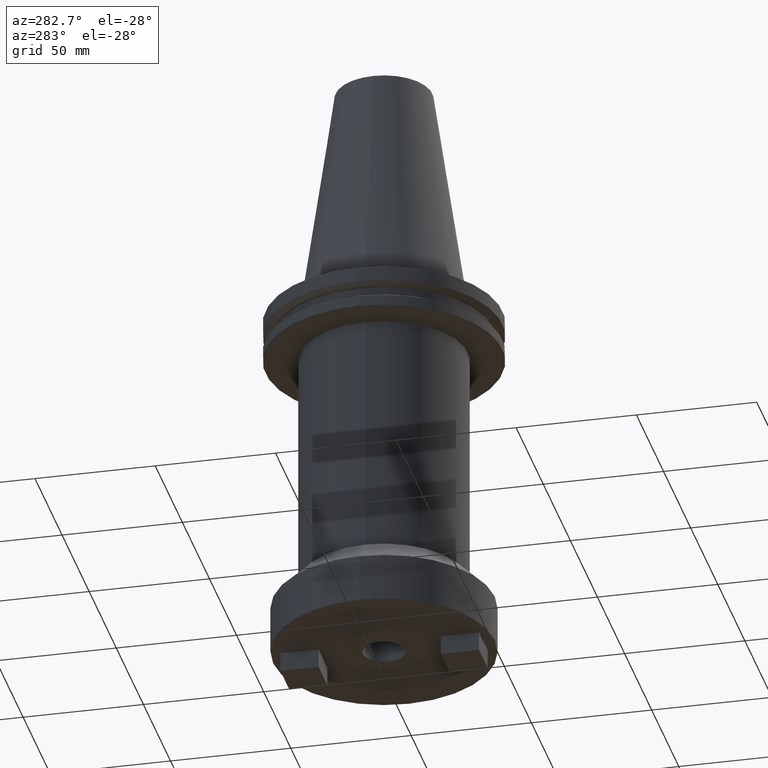
[diagram: clean part render]
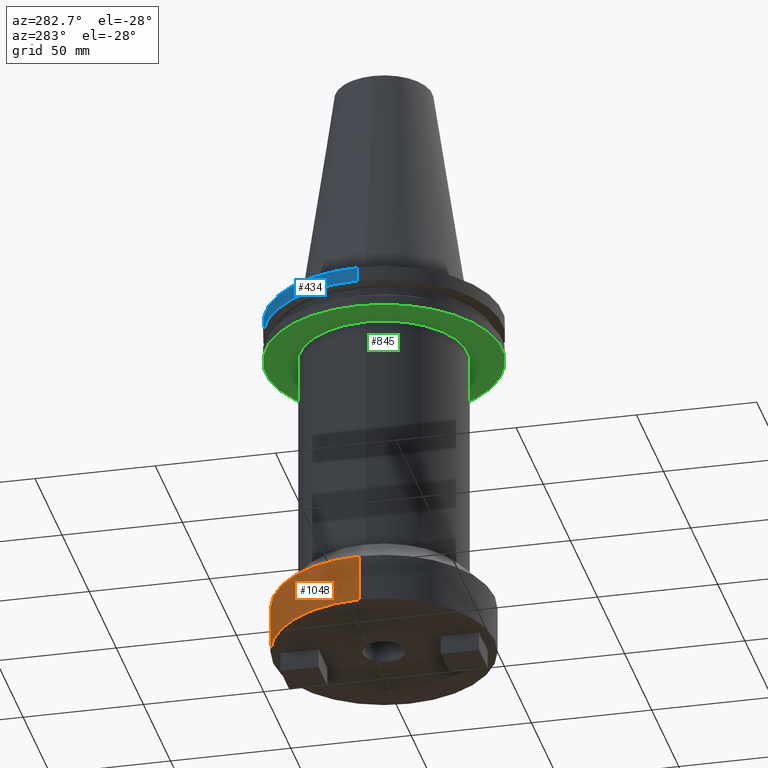
[diagram: same view with three faces highlighted in distinct colors, each labeled with its STEP entity id]
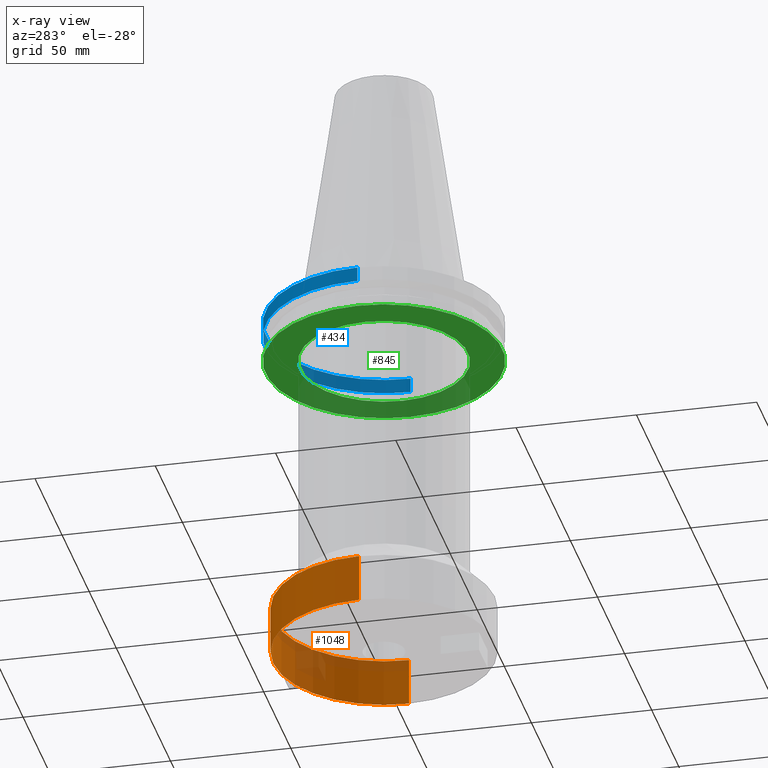
[diagram: x-ray of the same camera — body ghosted, the three highlighted faces saturated]
A machine part, auxiliary view with three faces highlighted in distinct colors.
The next image is the same camera in x-ray (body ghosted, the three faces saturated) — at least one of them is partly hidden behind the body in this view.
Their STEP definitions:

[orange] entity #1048 — the highlighted cylindrical surface (partial cylindrical patch) has radius 46.05 mm, axis along (-0, -0, 1).
#49 = DIRECTION ( 'NONE',  ( -0.000000000000000000, -0.000000000000000000, 1.000000000000000000 ) ) ;
#55 = CYLINDRICAL_SURFACE ( 'NONE', #959, 46.04999999999999716 ) ;
#103 = ORIENTED_EDGE ( 'NONE', *, *, #817, .T. ) ;
#105 = EDGE_CURVE ( 'NONE', #790, #1039, #1105, .T. ) ;
#132 = EDGE_LOOP ( 'NONE', ( #103, #465, #442, #724 ) ) ;
#163 = VERTEX_POINT ( 'NONE', #532 ) ;
#185 = DIRECTION ( 'NONE',  ( -0.000000000000000000, -0.000000000000000000, 1.000000000000000000 ) ) ;
#226 = DIRECTION ( 'NONE',  ( -0.000000000000000000, -0.000000000000000000, 1.000000000000000000 ) ) ;
#271 = VERTEX_POINT ( 'NONE', #630 ) ;
#310 = AXIS2_PLACEMENT_3D ( 'NONE', #634, #953, #614 ) ;
#317 = FACE_OUTER_BOUND ( 'NONE', #132, .T. ) ;
#335 = EDGE_CURVE ( 'NONE', #163, #271, #991, .T. ) ;
#354 = CIRCLE ( 'NONE', #500, 46.04999999999999716 ) ;
#442 = ORIENTED_EDGE ( 'NONE', *, *, #611, .F. ) ;
#465 = ORIENTED_EDGE ( 'NONE', *, *, #335, .T. ) ;
#500 = AXIS2_PLACEMENT_3D ( 'NONE', #1093, #569, #1078 ) ;
#532 = CARTESIAN_POINT ( 'NONE',  ( -46.04999999999999716, 5.639498510073560988E-15, -152.4000000000000057 ) ) ;
#562 = DIRECTION ( 'NONE',  ( 1.000000000000000000, 0.000000000000000000, 0.000000000000000000 ) ) ;
#569 = DIRECTION ( 'NONE',  ( -0.000000000000000000, -0.000000000000000000, 1.000000000000000000 ) ) ;
#588 = CIRCLE ( 'NONE', #310, 46.04999999999999716 ) ;
#611 = EDGE_CURVE ( 'NONE', #1039, #271, #588, .T. ) ;
#614 = DIRECTION ( 'NONE',  ( 1.000000000000000000, 0.000000000000000000, 0.000000000000000000 ) ) ;
#630 = CARTESIAN_POINT ( 'NONE',  ( -46.04999999999999716, 0.000000000000000000, -132.3949999999999534 ) ) ;
#634 = CARTESIAN_POINT ( 'NONE',  ( 0.000000000000000000, 0.000000000000000000, -132.3949999999999534 ) ) ;
#657 = CARTESIAN_POINT ( 'NONE',  ( 0.000000000000000000, 0.000000000000000000, 0.000000000000000000 ) ) ;
#663 = CARTESIAN_POINT ( 'NONE',  ( -46.04999999999999716, 5.639498510073560988E-15, 0.000000000000000000 ) ) ;
#667 = CARTESIAN_POINT ( 'NONE',  ( 46.04999999999999716, 5.639498510073560988E-15, -132.3949999999999534 ) ) ;
#724 = ORIENTED_EDGE ( 'NONE', *, *, #105, .F. ) ;
#790 = VERTEX_POINT ( 'NONE', #804 ) ;
#804 = CARTESIAN_POINT ( 'NONE',  ( 46.04999999999999716, 0.000000000000000000, -152.4000000000000057 ) ) ;
#817 = EDGE_CURVE ( 'NONE', #790, #163, #354, .T. ) ;
#945 = CARTESIAN_POINT ( 'NONE',  ( 46.04999999999999716, 0.000000000000000000, 0.000000000000000000 ) ) ;
#953 = DIRECTION ( 'NONE',  ( -0.000000000000000000, -0.000000000000000000, 1.000000000000000000 ) ) ;
#959 = AXIS2_PLACEMENT_3D ( 'NONE', #657, #49, #562 ) ;
#991 = LINE ( 'NONE', #663, #1102 ) ;
#1039 = VERTEX_POINT ( 'NONE', #667 ) ;
#1048 = ADVANCED_FACE ( 'NONE', ( #317 ), #55, .T. ) ;
#1078 = DIRECTION ( 'NONE',  ( 1.000000000000000000, 0.000000000000000000, 0.000000000000000000 ) ) ;
#1093 = CARTESIAN_POINT ( 'NONE',  ( 0.000000000000000000, 0.000000000000000000, -152.4000000000000057 ) ) ;
#1102 = VECTOR ( 'NONE', #226, 1000.000000000000000 ) ;
#1104 = VECTOR ( 'NONE', #185, 1000.000000000000000 ) ;
#1105 = LINE ( 'NONE', #945, #1104 ) ;

[blue] entity #434 — the highlighted cylindrical surface (partial cylindrical patch) has radius 49.215 mm, axis along (-0, -0, 1).
#15 = EDGE_CURVE ( 'NONE', #113, #747, #1108, .T. ) ;
#21 = CARTESIAN_POINT ( 'NONE',  ( 0.000000000000000000, 0.000000000000000000, -7.602389855251287187 ) ) ;
#27 = LINE ( 'NONE', #697, #1069 ) ;
#39 = CIRCLE ( 'NONE', #444, 49.21499999999999631 ) ;
#94 = CARTESIAN_POINT ( 'NONE',  ( -49.21499999999999631, 6.027099222003697826E-15, 101.5999999999999943 ) ) ;
#113 = VERTEX_POINT ( 'NONE', #337 ) ;
#189 = AXIS2_PLACEMENT_3D ( 'NONE', #507, #765, #1017 ) ;
#195 = VERTEX_POINT ( 'NONE', #476 ) ;
#209 = ORIENTED_EDGE ( 'NONE', *, *, #654, .T. ) ;
#337 = CARTESIAN_POINT ( 'NONE',  ( -49.21500000000000341, 6.027099222003699404E-15, -7.602389855251287187 ) ) ;
#408 = DIRECTION ( 'NONE',  ( 1.000000000000000000, 0.000000000000000000, 0.000000000000000000 ) ) ;
#427 = DIRECTION ( 'NONE',  ( -0.000000000000000000, -0.000000000000000000, 1.000000000000000000 ) ) ;
#433 = CYLINDRICAL_SURFACE ( 'NONE', #189, 49.21499999999999631 ) ;
#434 = ADVANCED_FACE ( 'NONE', ( #609 ), #433, .T. ) ;
#444 = AXIS2_PLACEMENT_3D ( 'NONE', #670, #427, #408 ) ;
#476 = CARTESIAN_POINT ( 'NONE',  ( 49.21500000000000341, 0.000000000000000000, -7.602389855251287187 ) ) ;
#507 = CARTESIAN_POINT ( 'NONE',  ( 0.000000000000000000, 0.000000000000000000, 101.5999999999999943 ) ) ;
#572 = AXIS2_PLACEMENT_3D ( 'NONE', #21, #803, #638 ) ;
#605 = EDGE_CURVE ( 'NONE', #195, #807, #27, .T. ) ;
#609 = FACE_OUTER_BOUND ( 'NONE', #764, .T. ) ;
#638 = DIRECTION ( 'NONE',  ( 1.000000000000000000, 0.000000000000000000, 0.000000000000000000 ) ) ;
#654 = EDGE_CURVE ( 'NONE', #195, #113, #1029, .T. ) ;
#670 = CARTESIAN_POINT ( 'NONE',  ( 0.000000000000000000, 0.000000000000000000, -1.499999999999987566 ) ) ;
#679 = DIRECTION ( 'NONE',  ( -0.000000000000000000, -0.000000000000000000, 1.000000000000000000 ) ) ;
#697 = CARTESIAN_POINT ( 'NONE',  ( 49.21499999999999631, 0.000000000000000000, 101.5999999999999943 ) ) ;
#710 = DIRECTION ( 'NONE',  ( -0.000000000000000000, -0.000000000000000000, 1.000000000000000000 ) ) ;
#727 = ORIENTED_EDGE ( 'NONE', *, *, #15, .T. ) ;
#730 = EDGE_CURVE ( 'NONE', #807, #747, #39, .T. ) ;
#747 = VERTEX_POINT ( 'NONE', #768 ) ;
#764 = EDGE_LOOP ( 'NONE', ( #209, #727, #981, #1091 ) ) ;
#765 = DIRECTION ( 'NONE',  ( -0.000000000000000000, -0.000000000000000000, 1.000000000000000000 ) ) ;
#768 = CARTESIAN_POINT ( 'NONE',  ( -49.21499999999999631, 6.027099222003697826E-15, -1.499999999999987566 ) ) ;
#803 = DIRECTION ( 'NONE',  ( -0.000000000000000000, -0.000000000000000000, 1.000000000000000000 ) ) ;
#807 = VERTEX_POINT ( 'NONE', #901 ) ;
#901 = CARTESIAN_POINT ( 'NONE',  ( 49.21499999999999631, 0.000000000000000000, -1.499999999999987566 ) ) ;
#981 = ORIENTED_EDGE ( 'NONE', *, *, #730, .F. ) ;
#1017 = DIRECTION ( 'NONE',  ( 1.000000000000000000, 0.000000000000000000, 0.000000000000000000 ) ) ;
#1029 = CIRCLE ( 'NONE', #572, 49.21500000000000341 ) ;
#1044 = VECTOR ( 'NONE', #679, 1000.000000000000000 ) ;
#1069 = VECTOR ( 'NONE', #710, 1000.000000000000000 ) ;
#1091 = ORIENTED_EDGE ( 'NONE', *, *, #605, .F. ) ;
#1108 = LINE ( 'NONE', #94, #1044 ) ;

[green] entity #845 — the highlighted planar face has unit normal (0, -0, 1).
#4 = DIRECTION ( 'NONE',  ( 1.000000000000000000, 0.000000000000000000, 0.000000000000000000 ) ) ;
#6 = DIRECTION ( 'NONE',  ( -0.000000000000000000, -0.000000000000000000, 1.000000000000000000 ) ) ;
#10 = AXIS2_PLACEMENT_3D ( 'NONE', #1016, #355, #258 ) ;
#24 = EDGE_CURVE ( 'NONE', #950, #369, #304, .T. ) ;
#45 = ORIENTED_EDGE ( 'NONE', *, *, #128, .F. ) ;
#50 = DIRECTION ( 'NONE',  ( 1.000000000000000000, 0.000000000000000000, 0.000000000000000000 ) ) ;
#52 = CARTESIAN_POINT ( 'NONE',  ( -49.21499999999998920, 6.027099222003697037E-15, -19.04999999999999716 ) ) ;
#67 = CARTESIAN_POINT ( 'NONE',  ( 0.000000000000000000, 0.000000000000000000, -19.04999999999999716 ) ) ;
#128 = EDGE_CURVE ( 'NONE', #320, #331, #767, .T. ) ;
#193 = EDGE_LOOP ( 'NONE', ( #706, #478 ) ) ;
#231 = CARTESIAN_POINT ( 'NONE',  ( -34.92499999999999716, 4.277078946022130887E-15, -19.04999999999999716 ) ) ;
#258 = DIRECTION ( 'NONE',  ( 1.000000000000000000, 0.000000000000000000, 0.000000000000000000 ) ) ;
#304 = CIRCLE ( 'NONE', #1011, 34.92499999999999716 ) ;
#316 = EDGE_LOOP ( 'NONE', ( #45, #999 ) ) ;
#320 = VERTEX_POINT ( 'NONE', #740 ) ;
#331 = VERTEX_POINT ( 'NONE', #52 ) ;
#355 = DIRECTION ( 'NONE',  ( -0.000000000000000000, -0.000000000000000000, 1.000000000000000000 ) ) ;
#369 = VERTEX_POINT ( 'NONE', #388 ) ;
#388 = CARTESIAN_POINT ( 'NONE',  ( 34.92499999999999716, 0.000000000000000000, -19.04999999999999716 ) ) ;
#477 = EDGE_CURVE ( 'NONE', #331, #320, #908, .T. ) ;
#478 = ORIENTED_EDGE ( 'NONE', *, *, #24, .T. ) ;
#501 = AXIS2_PLACEMENT_3D ( 'NONE', #67, #567, #904 ) ;
#519 = DIRECTION ( 'NONE',  ( -0.000000000000000000, -0.000000000000000000, 1.000000000000000000 ) ) ;
#567 = DIRECTION ( 'NONE',  ( -0.000000000000000000, -0.000000000000000000, 1.000000000000000000 ) ) ;
#595 = CARTESIAN_POINT ( 'NONE',  ( 0.000000000000000000, 0.000000000000000000, -19.04999999999999716 ) ) ;
#668 = FACE_OUTER_BOUND ( 'NONE', #316, .T. ) ;
#677 = DIRECTION ( 'NONE',  ( 1.000000000000000000, 0.000000000000000000, 0.000000000000000000 ) ) ;
#706 = ORIENTED_EDGE ( 'NONE', *, *, #1097, .T. ) ;
#739 = DIRECTION ( 'NONE',  ( 0.000000000000000000, -0.000000000000000000, 1.000000000000000000 ) ) ;
#740 = CARTESIAN_POINT ( 'NONE',  ( 49.21499999999998920, 0.000000000000000000, -19.04999999999999716 ) ) ;
#758 = AXIS2_PLACEMENT_3D ( 'NONE', #989, #739, #50 ) ;
#767 = CIRCLE ( 'NONE', #10, 49.21499999999998920 ) ;
#845 = ADVANCED_FACE ( 'NONE', ( #668, #1072 ), #1002, .F. ) ;
#852 = AXIS2_PLACEMENT_3D ( 'NONE', #855, #6, #677 ) ;
#853 = CIRCLE ( 'NONE', #501, 34.92499999999999716 ) ;
#855 = CARTESIAN_POINT ( 'NONE',  ( 0.000000000000000000, 0.000000000000000000, -19.04999999999999716 ) ) ;
#904 = DIRECTION ( 'NONE',  ( 1.000000000000000000, 0.000000000000000000, 0.000000000000000000 ) ) ;
#908 = CIRCLE ( 'NONE', #852, 49.21499999999998920 ) ;
#950 = VERTEX_POINT ( 'NONE', #231 ) ;
#989 = CARTESIAN_POINT ( 'NONE',  ( 0.000000000000000000, 49.21499999999998920, -19.04999999999999716 ) ) ;
#999 = ORIENTED_EDGE ( 'NONE', *, *, #477, .F. ) ;
#1002 = PLANE ( 'NONE',  #758 ) ;
#1011 = AXIS2_PLACEMENT_3D ( 'NONE', #595, #519, #4 ) ;
#1016 = CARTESIAN_POINT ( 'NONE',  ( 0.000000000000000000, 0.000000000000000000, -19.04999999999999716 ) ) ;
#1072 = FACE_BOUND ( 'NONE', #193, .T. ) ;
#1097 = EDGE_CURVE ( 'NONE', #369, #950, #853, .T. ) ;